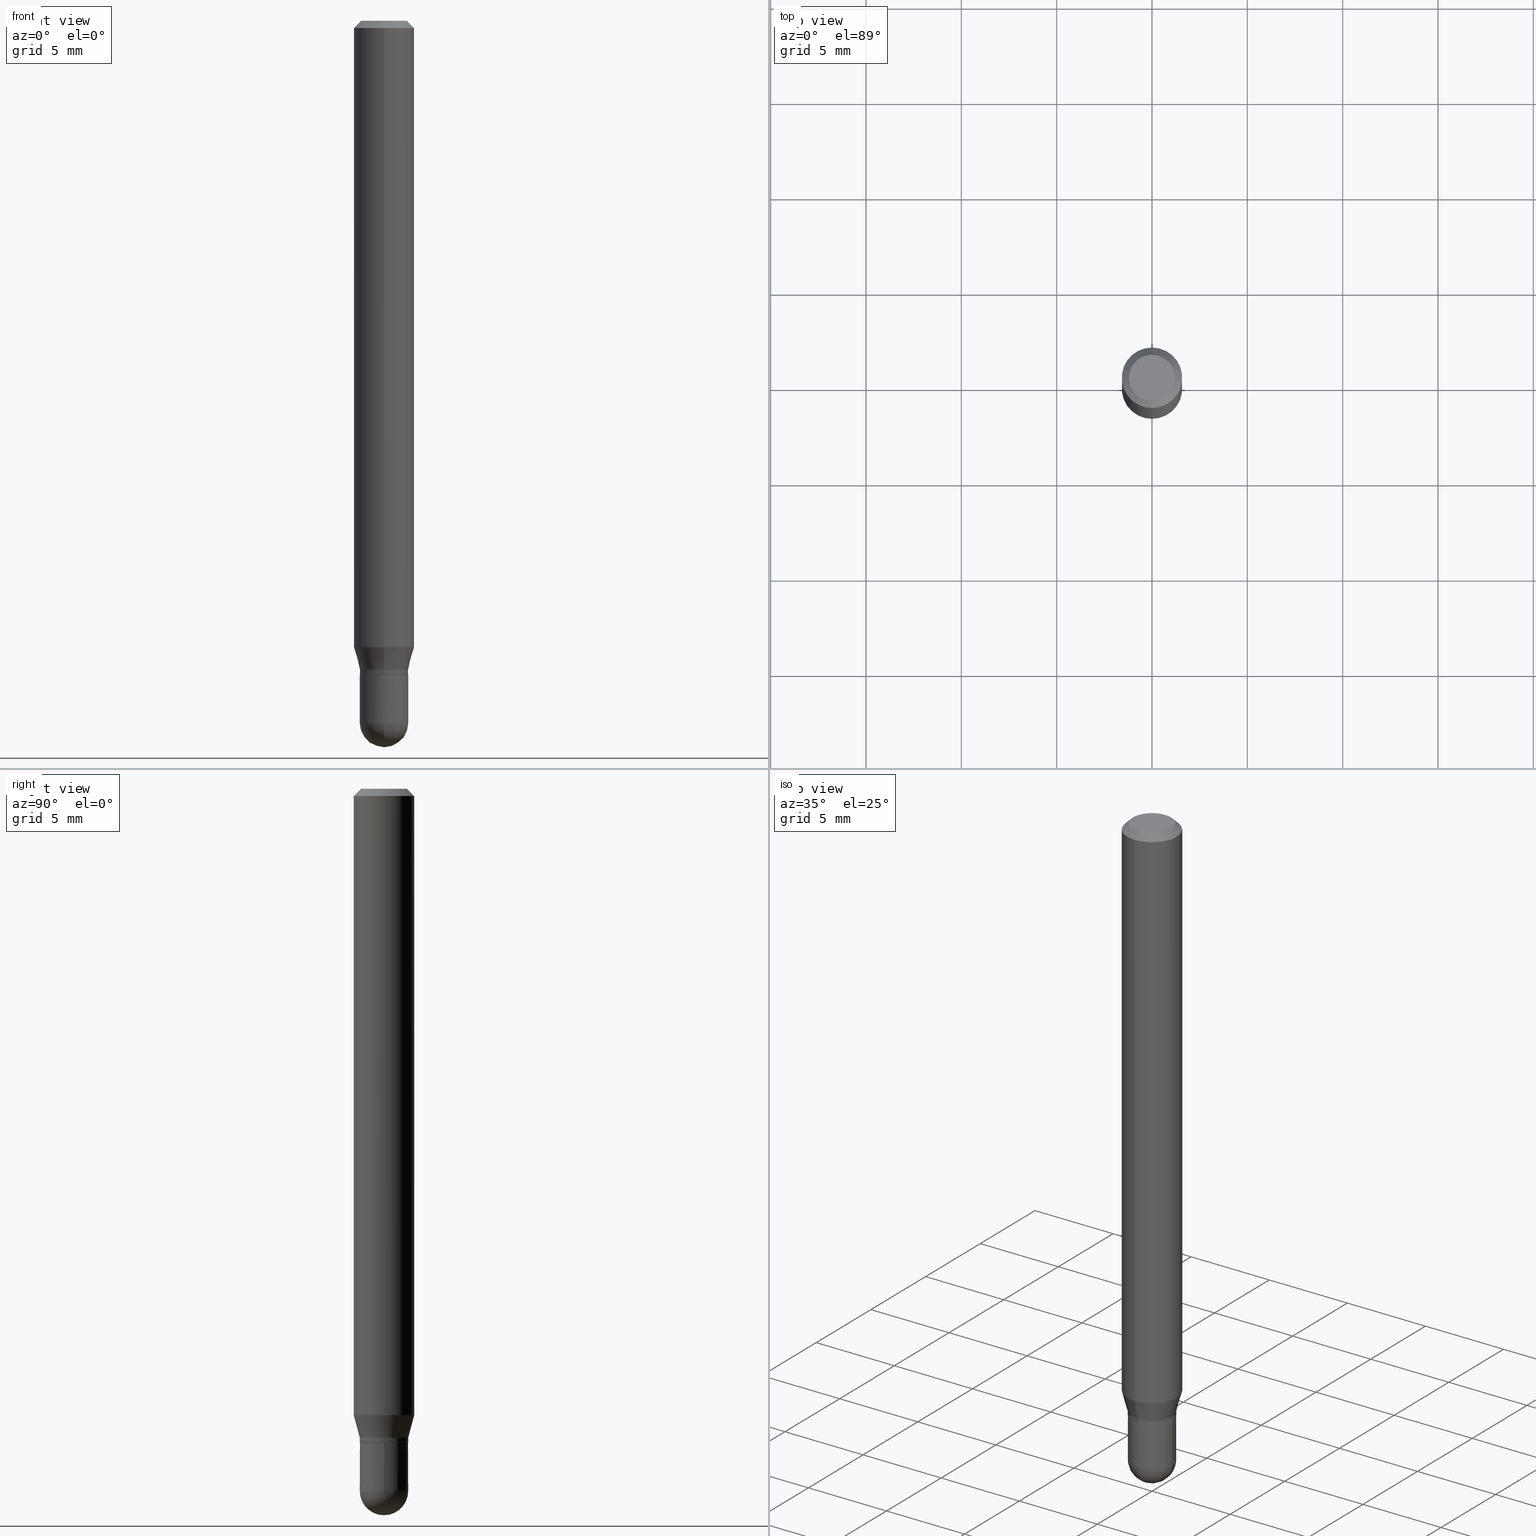
[diagram: canonical four-view strip — front | top / right | iso, engineering-drawing reading convention]
A machine part, canonical four-view strip (front | top / right | iso — engineering-drawing reading convention). The complete STEP part file that produces these views, byte-faithful:
ISO-10303-21;
HEADER;
FILE_DESCRIPTION (( 'STEP AP203' ),
    '1' );
FILE_NAME ('02533.STEP',
    '2024-03-07T20:17:11',
    ( '' ),
    ( '' ),
    'SwSTEP 2.0',
    'SolidWorks 2023',
    '' );
FILE_SCHEMA (( 'CONFIG_CONTROL_DESIGN' ));
ENDSEC;

DATA;
#1 = DIRECTION ( 'NONE',  ( -2.445341614175428020E-29, 3.491663485040367379E-15, 1.000000000000000000 ) ) ;
#2 = PERSON_AND_ORGANIZATION ( #133, #122 ) ;
#3 = EDGE_CURVE ( 'NONE', #261, #339, #460, .T. ) ;
#4 = AXIS2_PLACEMENT_3D ( 'NONE', #458, #273, #65 ) ;
#5 = VECTOR ( 'NONE', #228, 39.37007874015748143 ) ;
#6 = ADVANCED_FACE ( 'NONE', ( #444 ), #319, .T. ) ;
#7 = DIRECTION ( 'NONE',  ( 1.000000000000000000, -6.982962677686274599E-15, 0.000000000000000000 ) ) ;
#8 = VERTEX_POINT ( 'NONE', #455 ) ;
#9 = DIRECTION ( 'NONE',  ( 6.982962677686265922E-15, 1.000000000000000000, -3.491663485040367379E-15 ) ) ;
#10 = CARTESIAN_POINT ( 'NONE',  ( 0.000000000000000000, 0.000000000000000000, 0.000000000000000000 ) ) ;
#11 = CARTESIAN_POINT ( 'NONE',  ( 3.301382888349935078E-29, -4.713499807438246596E-15, -1.350000000000000089 ) ) ;
#12 = EDGE_LOOP ( 'NONE', ( #424, #18, #145, #420 ) ) ;
#13 = PERSON_AND_ORGANIZATION ( #133, #122 ) ;
#14 = PRODUCT ( '02533', '02533', '', ( #110 ) ) ;
#15 = ORIENTED_EDGE ( 'NONE', *, *, #183, .T. ) ;
#16 = DIRECTION ( 'NONE',  ( 1.000000000000000000, -6.982962677686265922E-15, 4.883557194083111780E-29 ) ) ;
#17 = DIRECTION ( 'NONE',  ( -2.445341614175428300E-29, 3.491663485040367379E-15, 1.000000000000000000 ) ) ;
#18 = ORIENTED_EDGE ( 'NONE', *, *, #226, .T. ) ;
#19 = VECTOR ( 'NONE', #315, 39.37007874015748143 ) ;
#20 = ORIENTED_EDGE ( 'NONE', *, *, #40, .F. ) ;
#21 = DIRECTION ( 'NONE',  ( 1.000000000000000000, -6.982962677686275388E-15, 0.000000000000000000 ) ) ;
#22 = ORIENTED_EDGE ( 'NONE', *, *, #472, .T. ) ;
#23 = LOCAL_TIME ( 15, 17, 11.00000000000000000, #170 ) ;
#24 = FACE_OUTER_BOUND ( 'NONE', #510, .T. ) ;
#25 = DIRECTION ( 'NONE',  ( -2.445341614175428300E-29, 3.491663485040367379E-15, 1.000000000000000000 ) ) ;
#26 = PLANE ( 'NONE',  #509 ) ;
#27 = CARTESIAN_POINT ( 'NONE',  ( 3.840629472727447874E-16, 0.04749999999999999362, -4.939923113072090255E-16 ) ) ;
#28 = LINE ( 'NONE', #59, #52 ) ;
#29 = CLOSED_SHELL ( 'NONE', ( #143, #42, #340, #136, #349 ) ) ;
#30 = CIRCLE ( 'NONE', #335, 0.06250000000000000000 ) ;
#31 = CC_DESIGN_DATE_AND_TIME_ASSIGNMENT ( #141, #130, ( #272 ) ) ;
#32 = CARTESIAN_POINT ( 'NONE',  ( 3.299988508329741342E-29, -4.711999873061976296E-15, -1.349500000000000144 ) ) ;
#33 = DIRECTION ( 'NONE',  ( -1.000000000000000000, 6.982962677686265922E-15, -4.876176775795935793E-29 ) ) ;
#34 = EDGE_CURVE ( 'NONE', #268, #97, #450, .T. ) ;
#35 = DIRECTION ( 'NONE',  ( 0.000000000000000000, 0.000000000000000000, 1.000000000000000000 ) ) ;
#36 = ORIENTED_EDGE ( 'NONE', *, *, #56, .T. ) ;
#37 = CIRCLE ( 'NONE', #169, 0.05000000000000014849 ) ;
#38 = EDGE_CURVE ( 'NONE', #454, #306, #309, .T. ) ;
#39 = DATE_AND_TIME ( #403, #23 ) ;
#40 = EDGE_CURVE ( 'NONE', #463, #311, #496, .T. ) ;
#41 = COORDINATED_UNIVERSAL_TIME_OFFSET ( 5, 0, .BEHIND. ) ;
#42 = ADVANCED_FACE ( 'NONE', ( #114 ), #291, .T. ) ;
#43 = AXIS2_PLACEMENT_3D ( 'NONE', #237, #17, #456 ) ;
#44 = AXIS2_PLACEMENT_3D ( 'NONE', #32, #361, #77 ) ;
#45 = VERTEX_POINT ( 'NONE', #162 ) ;
#46 = ADVANCED_FACE ( 'NONE', ( #285 ), #326, .T. ) ;
#47 = DIRECTION ( 'NONE',  ( -6.982962677686265922E-15, -1.000000000000000000, 5.518884835685379881E-15 ) ) ;
#48 = CARTESIAN_POINT ( 'NONE',  ( 0.05000000000000000278, -5.062647941322559931E-15, -1.350000000000000089 ) ) ;
#49 = ORIENTED_EDGE ( 'NONE', *, *, #356, .F. ) ;
#50 = CARTESIAN_POINT ( 'NONE',  ( 3.162681023670509800E-29, -4.515940750840297433E-15, -1.293349364905389320 ) ) ;
#51 = APPROVAL_ROLE ( '' ) ;
#52 = VECTOR ( 'NONE', #418, 39.37007874015748143 ) ;
#53 = CARTESIAN_POINT ( 'NONE',  ( 3.316907271900976096E-16, 0.04749999999999999362, -3.299231634233132902E-16 ) ) ;
#54 = ORIENTED_EDGE ( 'NONE', *, *, #325, .F. ) ;
#55 = VERTEX_POINT ( 'NONE', #353 ) ;
#56 = EDGE_CURVE ( 'NONE', #486, #367, #70, .T. ) ;
#57 = DIRECTION ( 'NONE',  ( -2.445468806185136597E-29, 3.491481338843145583E-15, 1.000000000000000000 ) ) ;
#58 = ORIENTED_EDGE ( 'NONE', *, *, #38, .F. ) ;
#59 = CARTESIAN_POINT ( 'NONE',  ( -3.456566525454371962E-16, -0.04950000000000471384, -1.349999999999999867 ) ) ;
#60 = VERTEX_POINT ( 'NONE', #329 ) ;
#61 = ORIENTED_EDGE ( 'NONE', *, *, #415, .F. ) ;
#62 = EDGE_LOOP ( 'NONE', ( #281, #457 ) ) ;
#63 = APPLICATION_CONTEXT ( 'configuration controlled 3d designs of mechanical parts and assemblies' ) ;
#64 = AXIS2_PLACEMENT_3D ( 'NONE', #274, #16, #66 ) ;
#65 = DIRECTION ( 'NONE',  ( 1.000000000000000000, -6.982962677686275388E-15, 0.000000000000000000 ) ) ;
#66 = DIRECTION ( 'NONE',  ( -6.982962677686265922E-15, -1.000000000000000000, 5.463695987328509871E-15 ) ) ;
#67 = CARTESIAN_POINT ( 'NONE',  ( -4.364351673553598192E-16, -0.06250000000000448253, -1.293349364905389098 ) ) ;
#68 = DIRECTION ( 'NONE',  ( -2.445341614175428300E-29, 3.491663485040367379E-15, 1.000000000000000000 ) ) ;
#69 = CC_DESIGN_PERSON_AND_ORGANIZATION_ASSIGNMENT ( #112, #166, ( #465 ) ) ;
#70 = CIRCLE ( 'NONE', #373, 0.04999999999999992645 ) ;
#71 = LINE ( 'NONE', #198, #85 ) ;
#72 = CARTESIAN_POINT ( 'NONE',  ( 3.661789462108859761E-29, -5.246406859258323786E-15, -1.500000000000000444 ) ) ;
#73 = CIRCLE ( 'NONE', #413, 0.04999999999999992645 ) ;
#74 = DIRECTION ( 'NONE',  ( -6.982962677686267499E-15, -1.000000000000000000, 5.463695987328534326E-15 ) ) ;
#75 = DIRECTION ( 'NONE',  ( -6.982962677686267499E-15, -1.000000000000000000, 5.463695987328534326E-15 ) ) ;
#76 = DIRECTION ( 'NONE',  ( -2.445341614175428300E-29, 3.491663485040367379E-15, 1.000000000000000000 ) ) ;
#77 = DIRECTION ( 'NONE',  ( -6.982962677686267499E-15, -1.000000000000000000, 5.463695987328534326E-15 ) ) ;
#78 = DIRECTION ( 'NONE',  ( 2.445341614175428300E-29, -3.491663485040367379E-15, -1.000000000000000000 ) ) ;
#79 = DIRECTION ( 'NONE',  ( 6.982962677686265922E-15, 1.000000000000000000, -3.483106191921935554E-15 ) ) ;
#80 = CIRCLE ( 'NONE', #251, 0.04999999999999999584 ) ;
#81 = CARTESIAN_POINT ( 'NONE',  ( 3.996802888650882640E-16, 0.04999999999999524963, -1.340000000000000746 ) ) ;
#82 = EDGE_CURVE ( 'NONE', #55, #60, #290, .T. ) ;
#83 = PRODUCT_RELATED_PRODUCT_CATEGORY ( 'detail', '', ( #14 ) ) ;
#84 = DATE_AND_TIME ( #299, #231 ) ;
#85 = VECTOR ( 'NONE', #244, 39.37007874015748143 ) ;
#86 = CC_DESIGN_APPROVAL ( #296, ( #209 ) ) ;
#87 = CARTESIAN_POINT ( 'NONE',  ( -3.773273898774340269E-16, -0.04749999999999999362, -1.622842802283741865E-16 ) ) ;
#88 = EDGE_CURVE ( 'NONE', #8, #224, #142, .T. ) ;
#89 = ORIENTED_EDGE ( 'NONE', *, *, #154, .F. ) ;
#90 = PLANE ( 'NONE',  #263 ) ;
#91 = EDGE_LOOP ( 'NONE', ( #303, #345, #501, #313 ) ) ;
#92 = EDGE_LOOP ( 'NONE', ( #190, #479, #259, #93 ) ) ;
#93 = ORIENTED_EDGE ( 'NONE', *, *, #125, .F. ) ;
#94 = APPROVAL_STATUS ( 'not_yet_approved' ) ;
#95 = AXIS2_PLACEMENT_3D ( 'NONE', #371, #508, #75 ) ;
#96 = ORIENTED_EDGE ( 'NONE', *, *, #437, .T. ) ;
#97 = VERTEX_POINT ( 'NONE', #260 ) ;
#98 = DIRECTION ( 'NONE',  ( -2.445341614175428300E-29, 3.491663485040367379E-15, 1.000000000000000000 ) ) ;
#99 = LOCAL_TIME ( 15, 17, 11.00000000000000000, #266 ) ;
#100 = CARTESIAN_POINT ( 'NONE',  ( 3.668012421263222920E-31, -5.237495227560666341E-17, -0.01500000000000032904 ) ) ;
#101 = LINE ( 'NONE', #105, #408 ) ;
#102 =( CONVERSION_BASED_UNIT ( 'INCH', #230 ) LENGTH_UNIT ( ) NAMED_UNIT ( #406 ) );
#103 = DIRECTION ( 'NONE',  ( -6.982962677686265922E-15, -1.000000000000000000, 3.483106191921935554E-15 ) ) ;
#104 = DIRECTION ( 'NONE',  ( -6.982962677686265922E-15, -1.000000000000000000, 4.370956789862821150E-15 ) ) ;
#105 = CARTESIAN_POINT ( 'NONE',  ( -3.491481338842800555E-16, -0.05000000000000460326, -1.340000000000000080 ) ) ;
#106 = CARTESIAN_POINT ( 'NONE',  ( 0.000000000000000000, 0.000000000000000000, 0.000000000000000000 ) ) ;
#107 = AXIS2_PLACEMENT_3D ( 'NONE', #462, #419, #149 ) ;
#108 = CALENDAR_DATE ( 2024, 7, 3 ) ;
#109 = FACE_OUTER_BOUND ( 'NONE', #429, .T. ) ;
#110 = MECHANICAL_CONTEXT ( 'NONE', #374, 'mechanical' ) ;
#111 = DIRECTION ( 'NONE',  ( -2.445341614175428300E-29, 3.491663485040367379E-15, 1.000000000000000000 ) ) ;
#112 = PERSON_AND_ORGANIZATION ( #133, #122 ) ;
#113 = CARTESIAN_POINT ( 'NONE',  ( 3.668012421263222920E-31, -5.237495227560666341E-17, -0.01500000000000032904 ) ) ;
#114 = FACE_OUTER_BOUND ( 'NONE', #382, .T. ) ;
#115 = AXIS2_PLACEMENT_3D ( 'NONE', #11, #336, #300 ) ;
#116 = EDGE_CURVE ( 'NONE', #270, #8, #210, .T. ) ;
#117 = LOCAL_TIME ( 15, 17, 11.00000000000000000, #383 ) ;
#118 = EDGE_CURVE ( 'NONE', #270, #454, #37, .T. ) ;
#119 = EDGE_CURVE ( 'NONE', #224, #454, #477, .T. ) ;
#120 = DIRECTION ( 'NONE',  ( 1.000000000000000000, 0.000000000000000000, 0.000000000000000000 ) ) ;
#121 = AXIS2_PLACEMENT_3D ( 'NONE', #467, #25, #139 ) ;
#122 = ORGANIZATION ( 'UNSPECIFIED', 'UNSPECIFIED', '' ) ;
#123 = DIRECTION ( 'NONE',  ( -2.445468806185136597E-29, 3.491481338843145583E-15, 1.000000000000000000 ) ) ;
#124 = LINE ( 'NONE', #344, #464 ) ;
#125 = EDGE_CURVE ( 'NONE', #463, #55, #28, .T. ) ;
#126 = APPLICATION_PROTOCOL_DEFINITION ( 'international standard', 'config_control_design', 1994, #63 ) ;
#127 = DATE_TIME_ROLE ( 'classification_date' ) ;
#128 = ORIENTED_EDGE ( 'NONE', *, *, #437, .F. ) ;
#129 = EDGE_CURVE ( 'NONE', #311, #60, #490, .T. ) ;
#130 = DATE_TIME_ROLE ( 'creation_date' ) ;
#131 = ORIENTED_EDGE ( 'NONE', *, *, #34, .F. ) ;
#132 = ORIENTED_EDGE ( 'NONE', *, *, #163, .F. ) ;
#133 = PERSON ( 'UNSPECIFIED', 'UNSPECIFIED', 'UNSPECIFIED', ('UNSPECIFIED'), ('UNSPECIFIED'), ('UNSPECIFIED') ) ;
#134 = CARTESIAN_POINT ( 'NONE',  ( 3.541653937522551347E-29, -5.068771175318297793E-15, -1.450000000000000178 ) ) ;
#135 = APPROVAL_DATE_TIME ( #264, #175 ) ;
#136 = ADVANCED_FACE ( 'NONE', ( #109 ), #193, .T. ) ;
#137 = ORIENTED_EDGE ( 'NONE', *, *, #88, .T. ) ;
#138 = FACE_OUTER_BOUND ( 'NONE', #12, .T. ) ;
#139 = DIRECTION ( 'NONE',  ( -6.982962677686267499E-15, -1.000000000000000000, 5.463695987328534326E-15 ) ) ;
#140 = ORIENTED_EDGE ( 'NONE', *, *, #415, .T. ) ;
#141 = DATE_AND_TIME ( #186, #395 ) ;
#142 = CIRCLE ( 'NONE', #348, 0.04999999999999999584 ) ;
#143 = ADVANCED_FACE ( 'NONE', ( #233 ), #200, .T. ) ;
#144 = AXIS2_PLACEMENT_3D ( 'NONE', #431, #243, #205 ) ;
#145 = ORIENTED_EDGE ( 'NONE', *, *, #409, .T. ) ;
#146 = APPROVAL_PERSON_ORGANIZATION ( #302, #175, #488 ) ;
#147 = ORIENTED_EDGE ( 'NONE', *, *, #236, .T. ) ;
#148 = DIRECTION ( 'NONE',  ( -6.982962677686267499E-15, -1.000000000000000000, 3.491663485040367379E-15 ) ) ;
#149 = DIRECTION ( 'NONE',  ( -6.982962677686266711E-15, -1.000000000000000000, 3.491663485040367379E-15 ) ) ;
#150 = MANIFOLD_SOLID_BREP ( 'Body-Move/Copy2[1]', #29 ) ;
#151 = CYLINDRICAL_SURFACE ( 'NONE', #257, 0.04999999999999999584 ) ;
#152 = ORIENTED_EDGE ( 'NONE', *, *, #88, .F. ) ;
#153 = DIRECTION ( 'NONE',  ( -2.445468806185136597E-29, 3.491481338843145583E-15, 1.000000000000000000 ) ) ;
#154 = EDGE_CURVE ( 'NONE', #486, #45, #218, .T. ) ;
#155 = PLANE ( 'NONE',  #473 ) ;
#156 = FACE_OUTER_BOUND ( 'NONE', #449, .T. ) ;
#157 = CARTESIAN_POINT ( 'NONE',  ( 3.541653937522551347E-29, -5.068771175318297793E-15, -1.450000000000000178 ) ) ;
#158 = DIRECTION ( 'NONE',  ( -6.982962677686265922E-15, -1.000000000000000000, 0.000000000000000000 ) ) ;
#159 = AXIS2_PLACEMENT_3D ( 'NONE', #355, #502, #507 ) ;
#160 = CARTESIAN_POINT ( 'NONE',  ( -3.491481338842800555E-16, -0.05000000000000460326, -1.340000000000000080 ) ) ;
#161 = CARTESIAN_POINT ( 'NONE',  ( -0.04999999999999999584, 3.552713678800500634E-16, -2.459467545127452961E-30 ) ) ;
#162 = CARTESIAN_POINT ( 'NONE',  ( 4.440892098500943678E-16, 0.06249999999999551054, -1.293349364905389765 ) ) ;
#163 = EDGE_CURVE ( 'NONE', #448, #267, #201, .T. ) ;
#164 = LINE ( 'NONE', #423, #5 ) ;
#165 = DIRECTION ( 'NONE',  ( -2.445468806185136877E-29, 3.491481338843145188E-15, 1.000000000000000000 ) ) ;
#166 = PERSON_AND_ORGANIZATION_ROLE ( 'design_supplier' ) ;
#167 = DIRECTION ( 'NONE',  ( 2.438088387897960049E-29, -3.491481338843145188E-15, -1.000000000000000000 ) ) ;
#168 = CC_DESIGN_PERSON_AND_ORGANIZATION_ASSIGNMENT ( #2, #478, ( #14 ) ) ;
#169 = AXIS2_PLACEMENT_3D ( 'NONE', #134, #262, #158 ) ;
#170 = COORDINATED_UNIVERSAL_TIME_OFFSET ( 5, 0, .BEHIND. ) ;
#171 = APPROVAL_DATE_TIME ( #39, #296 ) ;
#172 = PERSON_AND_ORGANIZATION_ROLE ( 'classification_officer' ) ;
#173 = CARTESIAN_POINT ( 'NONE',  ( 3.541653937522551347E-29, -5.068771175318297793E-15, -1.450000000000000178 ) ) ;
#174 = LINE ( 'NONE', #213, #376 ) ;
#175 = APPROVAL ( #94, 'UNSPECIFIED' ) ;
#176 = DIRECTION ( 'NONE',  ( -2.445468806185136877E-29, 3.491481338843145188E-15, 1.000000000000000000 ) ) ;
#177 = UNCERTAINTY_MEASURE_WITH_UNIT (LENGTH_MEASURE( 1.000000000000000082E-05 ), #102, 'distance_accuracy_value', 'NONE');
#178 = FACE_OUTER_BOUND ( 'NONE', #221, .T. ) ;
#179 = ADVANCED_FACE ( 'NONE', ( #138 ), #385, .T. ) ;
#180 = EDGE_LOOP ( 'NONE', ( #137, #483, #316, #192, #414 ) ) ;
#181 = AXIS2_PLACEMENT_3D ( 'NONE', #113, #242, #79 ) ;
#182 = DIRECTION ( 'NONE',  ( -2.445341614175428300E-29, 3.491663485040367379E-15, 1.000000000000000000 ) ) ;
#183 = EDGE_CURVE ( 'NONE', #448, #268, #269, .T. ) ;
#184 = EDGE_LOOP ( 'NONE', ( #20, #61 ) ) ;
#185 = EDGE_LOOP ( 'NONE', ( #132, #15, #447, #49 ) ) ;
#186 = CALENDAR_DATE ( 2024, 7, 3 ) ;
#187 = EDGE_CURVE ( 'NONE', #306, #339, #124, .T. ) ;
#188 = CARTESIAN_POINT ( 'NONE',  ( 0.000000000000000000, 0.000000000000000000, 0.000000000000000000 ) ) ;
#189 = ORIENTED_EDGE ( 'NONE', *, *, #236, .F. ) ;
#190 = ORIENTED_EDGE ( 'NONE', *, *, #40, .T. ) ;
#191 = APPROVAL_PERSON_ORGANIZATION ( #305, #341, #51 ) ;
#192 = ORIENTED_EDGE ( 'NONE', *, *, #187, .F. ) ;
#193 = SPHERICAL_SURFACE ( 'NONE', #64, 0.05000000000000014849 ) ;
#194 = ORIENTED_EDGE ( 'NONE', *, *, #116, .F. ) ;
#195 =( NAMED_UNIT ( * ) PLANE_ANGLE_UNIT ( ) SI_UNIT ( $, .RADIAN. ) );
#196 = CARTESIAN_POINT ( 'NONE',  ( 8.024102298455857291E-45, -1.145748505375774166E-30, -3.281382957677916183E-16 ) ) ;
#197 = DATE_AND_TIME ( #108, #99 ) ;
#198 = CARTESIAN_POINT ( 'NONE',  ( 3.552713678800495210E-16, 0.04999999999999992645, -1.745831742520181027E-16 ) ) ;
#199 = DIRECTION ( 'NONE',  ( 1.000000000000000000, -6.982962677686265922E-15, 4.883557194083111780E-29 ) ) ;
#200 = CYLINDRICAL_SURFACE ( 'NONE', #366, 0.04999999999999999584 ) ;
#201 = CIRCLE ( 'NONE', #388, 0.04749999999999999362 ) ;
#202 = LINE ( 'NONE', #161, #227 ) ;
#203 = DESIGN_CONTEXT ( 'detailed design', #63, 'design' ) ;
#204 = CARTESIAN_POINT ( 'NONE',  ( 3.668012421263222920E-31, -5.237495227560666341E-17, -0.01500000000000032904 ) ) ;
#205 = DIRECTION ( 'NONE',  ( -6.982962677686265922E-15, -1.000000000000000000, 3.491663485040367379E-15 ) ) ;
#206 = CARTESIAN_POINT ( 'NONE',  ( -4.364351673553912750E-16, -0.06250000000000005551, -0.01500000000000011047 ) ) ;
#207 = CONICAL_SURFACE ( 'NONE', #43, 0.04950000000000000233, 0.7853981633974739252 ) ;
#208 = DIRECTION ( 'NONE',  ( -2.445468806185136597E-29, 3.491481338843145583E-15, 1.000000000000000000 ) ) ;
#209 = SECURITY_CLASSIFICATION ( '', '', #393 ) ;
#210 = CIRCLE ( 'NONE', #287, 0.05000000000000014849 ) ;
#211 = CONICAL_SURFACE ( 'NONE', #95, 0.04999999999999992645, 0.2617993877991504625 ) ;
#212 = EDGE_CURVE ( 'NONE', #339, #261, #241, .T. ) ;
#213 = CARTESIAN_POINT ( 'NONE',  ( 4.440892098500625669E-16, 0.06250000000000000000, -2.182289678150229612E-16 ) ) ;
#214 = EDGE_CURVE ( 'NONE', #377, #268, #258, .T. ) ;
#215 = CARTESIAN_POINT ( 'NONE',  ( -0.04999999999999999584, -4.532802506500353644E-15, -1.450000000000000178 ) ) ;
#216 = ORIENTED_EDGE ( 'NONE', *, *, #214, .T. ) ;
#217 = CARTESIAN_POINT ( 'NONE',  ( 3.301382888349935078E-29, -4.713499807438246596E-15, -1.350000000000000089 ) ) ;
#218 = LINE ( 'NONE', #351, #470 ) ;
#219 = ORIENTED_EDGE ( 'NONE', *, *, #125, .T. ) ;
#220 = DIRECTION ( 'NONE',  ( 1.000000000000000000, -6.982962677686265922E-15, 4.876176775795936353E-29 ) ) ;
#221 = EDGE_LOOP ( 'NONE', ( #147, #400 ) ) ;
#222 = PRODUCT_DEFINITION_SHAPE ( 'NONE', 'NONE',  #272 ) ;
#223 = ORIENTED_EDGE ( 'NONE', *, *, #82, .T. ) ;
#224 = VERTEX_POINT ( 'NONE', #215 ) ;
#225 = ORIENTED_EDGE ( 'NONE', *, *, #442, .F. ) ;
#226 = EDGE_CURVE ( 'NONE', #60, #55, #441, .T. ) ;
#227 = VECTOR ( 'NONE', #165, 39.37007874015748143 ) ;
#228 = DIRECTION ( 'NONE',  ( 4.937700262164548042E-15, 0.7071067811865451302, -0.7071067811865499042 ) ) ;
#229 = CARTESIAN_POINT ( 'NONE',  ( 3.276757762995075475E-29, -4.678829069954094324E-15, -1.340000000000000524 ) ) ;
#230 = LENGTH_MEASURE_WITH_UNIT ( LENGTH_MEASURE( 0.02539999999999999897 ), #328 );
#231 = LOCAL_TIME ( 15, 17, 11.00000000000000000, #41 ) ;
#232 = ORIENTED_EDGE ( 'NONE', *, *, #294, .F. ) ;
#233 = FACE_OUTER_BOUND ( 'NONE', #180, .T. ) ;
#234 = CARTESIAN_POINT ( 'NONE',  ( 3.545929768968448850E-29, -5.062647941322561509E-15, -1.450000000000000178 ) ) ;
#235 = ORIENTED_EDGE ( 'NONE', *, *, #118, .T. ) ;
#236 = EDGE_CURVE ( 'NONE', #267, #448, #330, .T. ) ;
#237 = CARTESIAN_POINT ( 'NONE',  ( 3.301211179136828164E-29, -4.713745704804496317E-15, -1.350000000000000089 ) ) ;
#238 = DIRECTION ( 'NONE',  ( -2.445341614175428300E-29, 3.491663485040367379E-15, 1.000000000000000000 ) ) ;
#239 = ADVANCED_FACE ( 'NONE', ( #156 ), #207, .T. ) ;
#240 = AXIS2_PLACEMENT_3D ( 'NONE', #100, #453, #103 ) ;
#241 = CIRCLE ( 'NONE', #115, 0.05000000000000000278 ) ;
#242 = DIRECTION ( 'NONE',  ( 2.445341614175428300E-29, -3.491663485040367379E-15, -1.000000000000000000 ) ) ;
#243 = DIRECTION ( 'NONE',  ( -2.445341614175428300E-29, 3.491663485040367379E-15, 1.000000000000000000 ) ) ;
#244 = DIRECTION ( 'NONE',  ( -2.445341614175428020E-29, 3.491663485040367379E-15, 1.000000000000000000 ) ) ;
#245 = CARTESIAN_POINT ( 'NONE',  ( 3.545929768968448850E-29, -5.062647941322561509E-15, -1.450000000000000178 ) ) ;
#246 = EDGE_CURVE ( 'NONE', #367, #377, #101, .T. ) ;
#247 = DIRECTION ( 'NONE',  ( -6.982962677686265922E-15, -1.000000000000000000, 5.518884835685379881E-15 ) ) ;
#248 = DIRECTION ( 'NONE',  ( -6.982962677686267499E-15, -1.000000000000000000, 5.463695987328534326E-15 ) ) ;
#249 = AXIS2_PLACEMENT_3D ( 'NONE', #217, #153, #7 ) ;
#250 = EDGE_CURVE ( 'NONE', #60, #486, #71, .T. ) ;
#251 = AXIS2_PLACEMENT_3D ( 'NONE', #234, #208, #511 ) ;
#252 = FACE_OUTER_BOUND ( 'NONE', #417, .T. ) ;
#253 = ORIENTED_EDGE ( 'NONE', *, *, #187, .T. ) ;
#254 = EDGE_CURVE ( 'NONE', #367, #486, #73, .T. ) ;
#255 = CC_DESIGN_PERSON_AND_ORGANIZATION_ASSIGNMENT ( #364, #172, ( #209 ) ) ;
#256 = DIRECTION ( 'NONE',  ( -2.445341614175428300E-29, 3.491663485040367379E-15, 1.000000000000000000 ) ) ;
#257 = AXIS2_PLACEMENT_3D ( 'NONE', #354, #317, #390 ) ;
#258 = LINE ( 'NONE', #410, #275 ) ;
#259 = ORIENTED_EDGE ( 'NONE', *, *, #82, .F. ) ;
#260 = CARTESIAN_POINT ( 'NONE',  ( 4.440892098500943678E-16, 0.06249999999999995143, -0.01500000000000054588 ) ) ;
#261 = VERTEX_POINT ( 'NONE', #397 ) ;
#262 = DIRECTION ( 'NONE',  ( -1.000000000000000000, 6.982962677686265922E-15, -4.883557194083112340E-29 ) ) ;
#263 = AXIS2_PLACEMENT_3D ( 'NONE', #53, #337, #9 ) ;
#264 = DATE_AND_TIME ( #492, #117 ) ;
#265 =( GEOMETRIC_REPRESENTATION_CONTEXT ( 3 ) GLOBAL_UNCERTAINTY_ASSIGNED_CONTEXT ( ( #177 ) ) GLOBAL_UNIT_ASSIGNED_CONTEXT ( ( #102, #195, #322 ) ) REPRESENTATION_CONTEXT ( 'NONE', 'WORKASPACE' ) );
#266 = COORDINATED_UNIVERSAL_TIME_OFFSET ( 5, 0, .BEHIND. ) ;
#267 = VERTEX_POINT ( 'NONE', #27 ) ;
#268 = VERTEX_POINT ( 'NONE', #206 ) ;
#269 = LINE ( 'NONE', #346, #19 ) ;
#270 = VERTEX_POINT ( 'NONE', #72 ) ;
#271 = ORIENTED_EDGE ( 'NONE', *, *, #250, .T. ) ;
#272 = PRODUCT_DEFINITION ( 'UNKNOWN', '', #465, #203 ) ;
#273 = DIRECTION ( 'NONE',  ( -2.445468806185136597E-29, 3.491481338843145583E-15, 1.000000000000000000 ) ) ;
#274 = CARTESIAN_POINT ( 'NONE',  ( 3.541653937522551347E-29, -5.068771175318297793E-15, -1.450000000000000178 ) ) ;
#275 = VECTOR ( 'NONE', #1, 39.37007874015748143 ) ;
#276 = DIRECTION ( 'NONE',  ( -2.445341614175428300E-29, 3.491663485040367379E-15, 1.000000000000000000 ) ) ;
#277 = DIRECTION ( 'NONE',  ( -2.445341614175428300E-29, 3.491663485040367379E-15, 1.000000000000000000 ) ) ;
#278 = CC_DESIGN_SECURITY_CLASSIFICATION ( #209, ( #465 ) ) ;
#279 = CARTESIAN_POINT ( 'NONE',  ( 3.301211179136828164E-29, -4.713745704804496317E-15, -1.350000000000000089 ) ) ;
#280 = CARTESIAN_POINT ( 'NONE',  ( 3.517186542012825435E-16, 0.04949999999999529082, -1.350000000000000311 ) ) ;
#281 = ORIENTED_EDGE ( 'NONE', *, *, #212, .T. ) ;
#282 = DIRECTION ( 'NONE',  ( -2.445341614175428300E-29, 3.491663485040367379E-15, 1.000000000000000000 ) ) ;
#283 = SHAPE_DEFINITION_REPRESENTATION ( #222, #493 ) ;
#284 = ADVANCED_FACE ( 'NONE', ( #332 ), #298, .T. ) ;
#285 = FACE_OUTER_BOUND ( 'NONE', #387, .T. ) ;
#286 = CC_DESIGN_DATE_AND_TIME_ASSIGNMENT ( #84, #127, ( #209 ) ) ;
#287 = AXIS2_PLACEMENT_3D ( 'NONE', #173, #485, #476 ) ;
#288 = AXIS2_PLACEMENT_3D ( 'NONE', #50, #352, #104 ) ;
#289 = FACE_OUTER_BOUND ( 'NONE', #91, .T. ) ;
#290 = CIRCLE ( 'NONE', #44, 0.04999999999999992645 ) ;
#291 = SPHERICAL_SURFACE ( 'NONE', #432, 0.05000000000000014849 ) ;
#292 = ORIENTED_EDGE ( 'NONE', *, *, #183, .F. ) ;
#293 = FACE_OUTER_BOUND ( 'NONE', #185, .T. ) ;
#294 = EDGE_CURVE ( 'NONE', #224, #261, #202, .T. ) ;
#295 = DIRECTION ( 'NONE',  ( -6.982962677686265922E-15, -1.000000000000000000, 3.491663485040367379E-15 ) ) ;
#296 = APPROVAL ( #512, 'UNSPECIFIED' ) ;
#297 = CARTESIAN_POINT ( 'NONE',  ( 3.301211179136828164E-29, -4.713745704804496317E-15, -1.350000000000000089 ) ) ;
#298 = CONICAL_SURFACE ( 'NONE', #159, 0.04950000000000000233, 0.7853981633974739252 ) ;
#299 = CALENDAR_DATE ( 2024, 7, 3 ) ;
#300 = DIRECTION ( 'NONE',  ( 1.000000000000000000, -6.982962677686274599E-15, 0.000000000000000000 ) ) ;
#301 = AXIS2_PLACEMENT_3D ( 'NONE', #391, #57, #21 ) ;
#302 = PERSON_AND_ORGANIZATION ( #133, #122 ) ;
#303 = ORIENTED_EDGE ( 'NONE', *, *, #254, .T. ) ;
#304 = CARTESIAN_POINT ( 'NONE',  ( -3.456566525454371962E-16, -0.04950000000000471384, -1.349999999999999867 ) ) ;
#305 = PERSON_AND_ORGANIZATION ( #133, #122 ) ;
#306 = VERTEX_POINT ( 'NONE', #466 ) ;
#307 = ORIENTED_EDGE ( 'NONE', *, *, #118, .F. ) ;
#308 = ORIENTED_EDGE ( 'NONE', *, *, #214, .F. ) ;
#309 = CIRCLE ( 'NONE', #4, 0.04999999999999999584 ) ;
#310 = CARTESIAN_POINT ( 'NONE',  ( 0.000000000000000000, 0.000000000000000000, 0.000000000000000000 ) ) ;
#311 = VERTEX_POINT ( 'NONE', #469 ) ;
#312 = AXIS2_PLACEMENT_3D ( 'NONE', #297, #446, #47 ) ;
#313 = ORIENTED_EDGE ( 'NONE', *, *, #246, .F. ) ;
#314 = ORIENTED_EDGE ( 'NONE', *, *, #356, .T. ) ;
#315 = DIRECTION ( 'NONE',  ( -4.851104656540964275E-15, -0.7071067811865500152, -0.7071067811865450192 ) ) ;
#316 = ORIENTED_EDGE ( 'NONE', *, *, #212, .F. ) ;
#317 = DIRECTION ( 'NONE',  ( -2.445468806185136597E-29, 3.491481338843145583E-15, 1.000000000000000000 ) ) ;
#318 = ORIENTED_EDGE ( 'NONE', *, *, #325, .T. ) ;
#319 = CYLINDRICAL_SURFACE ( 'NONE', #392, 0.06250000000000000000 ) ;
#320 = DIRECTION ( 'NONE',  ( 1.839019923739601499E-15, 0.2588190451025251249, 0.9659258262890670910 ) ) ;
#321 = CYLINDRICAL_SURFACE ( 'NONE', #433, 0.04999999999999992645 ) ;
#322 =( NAMED_UNIT ( * ) SI_UNIT ( $, .STERADIAN. ) SOLID_ANGLE_UNIT ( ) );
#323 = EDGE_LOOP ( 'NONE', ( #292, #189, #314, #318 ) ) ;
#324 = VECTOR ( 'NONE', #396, 39.37007874015748143 ) ;
#325 = EDGE_CURVE ( 'NONE', #97, #268, #438, .T. ) ;
#326 = CYLINDRICAL_SURFACE ( 'NONE', #144, 0.06250000000000000000 ) ;
#327 = DIRECTION ( 'NONE',  ( -2.445468806185136597E-29, 3.491481338843145583E-15, 1.000000000000000000 ) ) ;
#328 =( LENGTH_UNIT ( ) NAMED_UNIT ( * ) SI_UNIT ( $, .METRE. ) );
#329 = CARTESIAN_POINT ( 'NONE',  ( 3.552713678800832448E-16, 0.04999999999999531902, -1.349500000000000366 ) ) ;
#330 = CIRCLE ( 'NONE', #107, 0.04749999999999999362 ) ;
#331 = ADVANCED_FACE ( 'NONE', ( #506 ), #347, .T. ) ;
#332 = FACE_OUTER_BOUND ( 'NONE', #92, .T. ) ;
#333 = CC_DESIGN_PERSON_AND_ORGANIZATION_ASSIGNMENT ( #13, #412, ( #272 ) ) ;
#334 = PERSON_AND_ORGANIZATION ( #133, #122 ) ;
#335 = AXIS2_PLACEMENT_3D ( 'NONE', #489, #256, #471 ) ;
#336 = DIRECTION ( 'NONE',  ( -2.445468806185136597E-29, 3.491481338843145583E-15, 1.000000000000000000 ) ) ;
#337 = DIRECTION ( 'NONE',  ( 2.445341614175428020E-29, -3.491663485040367379E-15, -1.000000000000000000 ) ) ;
#338 = VECTOR ( 'NONE', #461, 39.37007874015748143 ) ;
#339 = VERTEX_POINT ( 'NONE', #48 ) ;
#340 = ADVANCED_FACE ( 'NONE', ( #422 ), #26, .F. ) ;
#341 = APPROVAL ( #445, 'UNSPECIFIED' ) ;
#342 = DIRECTION ( 'NONE',  ( -2.445341614175428020E-29, 3.491663485040367379E-15, 1.000000000000000000 ) ) ;
#343 = ORIENTED_EDGE ( 'NONE', *, *, #399, .F. ) ;
#344 = CARTESIAN_POINT ( 'NONE',  ( 0.04999999999999999584, -3.491481338843132862E-16, 2.438088387897967896E-30 ) ) ;
#345 = ORIENTED_EDGE ( 'NONE', *, *, #154, .T. ) ;
#346 = CARTESIAN_POINT ( 'NONE',  ( -4.287811248607203282E-16, -0.06250000000000005551, -0.01500000000000011047 ) ) ;
#347 = CONICAL_SURFACE ( 'NONE', #181, 0.06250000000000000000, 0.7853981633974483900 ) ;
#348 = AXIS2_PLACEMENT_3D ( 'NONE', #245, #123, #480 ) ;
#349 = ADVANCED_FACE ( 'NONE', ( #504 ), #151, .T. ) ;
#350 = ORIENTED_EDGE ( 'NONE', *, *, #119, .T. ) ;
#351 = CARTESIAN_POINT ( 'NONE',  ( 3.552713678800822587E-16, 0.04999999999999524963, -1.340000000000000746 ) ) ;
#352 = DIRECTION ( 'NONE',  ( -2.445341614175428300E-29, 3.491663485040367379E-15, 1.000000000000000000 ) ) ;
#353 = CARTESIAN_POINT ( 'NONE',  ( -3.491481338842790694E-16, -0.05000000000000454081, -1.349499999999999922 ) ) ;
#354 = CARTESIAN_POINT ( 'NONE',  ( 0.000000000000000000, 0.000000000000000000, 0.000000000000000000 ) ) ;
#355 = CARTESIAN_POINT ( 'NONE',  ( 3.301211179136828164E-29, -4.713745704804496317E-15, -1.350000000000000089 ) ) ;
#356 = EDGE_CURVE ( 'NONE', #267, #97, #164, .T. ) ;
#357 = DIRECTION ( 'NONE',  ( -6.982962677686265922E-15, -1.000000000000000000, 5.463695987328509871E-15 ) ) ;
#358 = AXIS2_PLACEMENT_3D ( 'NONE', #310, #98, #148 ) ;
#359 = DIRECTION ( 'NONE',  ( -6.982962677686265922E-15, -1.000000000000000000, 3.483106191921935554E-15 ) ) ;
#360 = CC_DESIGN_APPROVAL ( #175, ( #272 ) ) ;
#361 = DIRECTION ( 'NONE',  ( -2.445341614175428300E-29, 3.491663485040367379E-15, 1.000000000000000000 ) ) ;
#362 = CARTESIAN_POINT ( 'NONE',  ( 3.276757762995075475E-29, -4.678829069954094324E-15, -1.340000000000000524 ) ) ;
#363 = APPLICATION_PROTOCOL_DEFINITION ( 'international standard', 'config_control_design', 1994, #374 ) ;
#364 = PERSON_AND_ORGANIZATION ( #133, #122 ) ;
#365 = DIRECTION ( 'NONE',  ( 6.982962677686265922E-15, 1.000000000000000000, -3.483106191921935554E-15 ) ) ;
#366 = AXIS2_PLACEMENT_3D ( 'NONE', #188, #327, #220 ) ;
#367 = VERTEX_POINT ( 'NONE', #160 ) ;
#368 = ADVANCED_FACE ( 'NONE', ( #24 ), #321, .T. ) ;
#369 = LINE ( 'NONE', #405, #324 ) ;
#370 = APPROVAL_ROLE ( '' ) ;
#371 = CARTESIAN_POINT ( 'NONE',  ( 3.276757762995075475E-29, -4.678829069954094324E-15, -1.340000000000000524 ) ) ;
#372 = PERSON_AND_ORGANIZATION ( #133, #122 ) ;
#373 = AXIS2_PLACEMENT_3D ( 'NONE', #362, #76, #74 ) ;
#374 = APPLICATION_CONTEXT ( 'configuration controlled 3d designs of mechanical parts and assemblies' ) ;
#375 = AXIS2_PLACEMENT_3D ( 'NONE', #279, #282, #247 ) ;
#376 = VECTOR ( 'NONE', #342, 39.37007874015748143 ) ;
#377 = VERTEX_POINT ( 'NONE', #67 ) ;
#378 = ORIENTED_EDGE ( 'NONE', *, *, #246, .T. ) ;
#379 = CONICAL_SURFACE ( 'NONE', #434, 0.04999999999999992645, 0.2617993877991504625 ) ;
#380 = DIRECTION ( 'NONE',  ( -6.982962677686265922E-15, -1.000000000000000000, 3.491663485040367379E-15 ) ) ;
#381 = DIRECTION ( 'NONE',  ( -6.982962677686266711E-15, -1.000000000000000000, 3.491663485040367379E-15 ) ) ;
#382 = EDGE_LOOP ( 'NONE', ( #307, #452, #343, #58 ) ) ;
#383 = COORDINATED_UNIVERSAL_TIME_OFFSET ( 5, 0, .BEHIND. ) ;
#384 = ORIENTED_EDGE ( 'NONE', *, *, #226, .F. ) ;
#385 = CYLINDRICAL_SURFACE ( 'NONE', #358, 0.04999999999999992645 ) ;
#386 = EDGE_LOOP ( 'NONE', ( #232, #350, #497, #253, #411 ) ) ;
#387 = EDGE_LOOP ( 'NONE', ( #22, #96, #131, #308 ) ) ;
#388 = AXIS2_PLACEMENT_3D ( 'NONE', #196, #111, #381 ) ;
#389 = ORIENTED_EDGE ( 'NONE', *, *, #254, .F. ) ;
#390 = DIRECTION ( 'NONE',  ( 1.000000000000000000, -6.982962677686265922E-15, 4.876176775795936353E-29 ) ) ;
#391 = CARTESIAN_POINT ( 'NONE',  ( 3.545929768968448850E-29, -5.062647941322561509E-15, -1.450000000000000178 ) ) ;
#392 = AXIS2_PLACEMENT_3D ( 'NONE', #10, #182, #380 ) ;
#393 = SECURITY_CLASSIFICATION_LEVEL ( 'unclassified' ) ;
#394 = CIRCLE ( 'NONE', #288, 0.06250000000000000000 ) ;
#395 = LOCAL_TIME ( 15, 17, 11.00000000000000000, #416 ) ;
#396 = DIRECTION ( 'NONE',  ( -2.445341614175428020E-29, 3.491663485040367379E-15, 1.000000000000000000 ) ) ;
#397 = CARTESIAN_POINT ( 'NONE',  ( -0.05000000000000000278, -4.532802506500353644E-15, -1.350000000000000089 ) ) ;
#398 = PERSON_AND_ORGANIZATION_ROLE ( 'creator' ) ;
#399 = EDGE_CURVE ( 'NONE', #306, #8, #80, .T. ) ;
#400 = ORIENTED_EDGE ( 'NONE', *, *, #163, .T. ) ;
#401 = CLOSED_SHELL ( 'NONE', ( #368, #284, #443, #46, #407, #500, #6, #331, #439, #475, #239, #179 ) ) ;
#402 = AXIS2_PLACEMENT_3D ( 'NONE', #204, #68, #359 ) ;
#403 = CALENDAR_DATE ( 2024, 7, 3 ) ;
#404 = CARTESIAN_POINT ( 'NONE',  ( 3.276757762995075475E-29, -4.678829069954094324E-15, -1.340000000000000524 ) ) ;
#405 = CARTESIAN_POINT ( 'NONE',  ( -3.491481338843128425E-16, -0.04999999999999992645, 1.745831742520181027E-16 ) ) ;
#406 = DIMENSIONAL_EXPONENTS ( 1.000000000000000000, 0.000000000000000000, 0.000000000000000000, 0.000000000000000000, 0.000000000000000000, 0.000000000000000000, 0.000000000000000000 ) ;
#407 = ADVANCED_FACE ( 'NONE', ( #289 ), #211, .T. ) ;
#408 = VECTOR ( 'NONE', #425, 39.37007874015748854 ) ;
#409 = EDGE_CURVE ( 'NONE', #55, #367, #369, .T. ) ;
#410 = CARTESIAN_POINT ( 'NONE',  ( -4.364351673553916201E-16, -0.06250000000000000000, 2.182289678150229612E-16 ) ) ;
#411 = ORIENTED_EDGE ( 'NONE', *, *, #3, .F. ) ;
#412 = PERSON_AND_ORGANIZATION_ROLE ( 'creator' ) ;
#413 = AXIS2_PLACEMENT_3D ( 'NONE', #229, #277, #428 ) ;
#414 = ORIENTED_EDGE ( 'NONE', *, *, #399, .T. ) ;
#415 = EDGE_CURVE ( 'NONE', #311, #463, #426, .T. ) ;
#416 = COORDINATED_UNIVERSAL_TIME_OFFSET ( 5, 0, .BEHIND. ) ;
#417 = EDGE_LOOP ( 'NONE', ( #89, #36, #378, #225 ) ) ;
#418 = DIRECTION ( 'NONE',  ( -4.937700262164674260E-15, -0.7071067811865632269, 0.7071067811865319186 ) ) ;
#419 = DIRECTION ( 'NONE',  ( -2.445341614175428300E-29, 3.491663485040367379E-15, 1.000000000000000000 ) ) ;
#420 = ORIENTED_EDGE ( 'NONE', *, *, #56, .F. ) ;
#421 = CC_DESIGN_PERSON_AND_ORGANIZATION_ASSIGNMENT ( #334, #398, ( #465 ) ) ;
#422 = FACE_OUTER_BOUND ( 'NONE', #62, .T. ) ;
#423 = CARTESIAN_POINT ( 'NONE',  ( 4.364351673553919652E-16, 0.06249999999999995143, -0.01500000000000054588 ) ) ;
#424 = ORIENTED_EDGE ( 'NONE', *, *, #250, .F. ) ;
#425 = DIRECTION ( 'NONE',  ( -1.807323732225331323E-15, -0.2588190451025183525, 0.9659258262890689783 ) ) ;
#426 = CIRCLE ( 'NONE', #312, 0.04950000000000000233 ) ;
#427 = DIRECTION ( 'NONE',  ( -6.982962677686267499E-15, -1.000000000000000000, 3.491663485040367379E-15 ) ) ;
#428 = DIRECTION ( 'NONE',  ( -6.982962677686267499E-15, -1.000000000000000000, 5.463695987328534326E-15 ) ) ;
#429 = EDGE_LOOP ( 'NONE', ( #194, #235, #491, #152 ) ) ;
#430 = CARTESIAN_POINT ( 'NONE',  ( 3.301211179136828164E-29, -4.713745704804496317E-15, -1.350000000000000089 ) ) ;
#431 = CARTESIAN_POINT ( 'NONE',  ( 0.000000000000000000, 0.000000000000000000, 0.000000000000000000 ) ) ;
#432 = AXIS2_PLACEMENT_3D ( 'NONE', #157, #199, #357 ) ;
#433 = AXIS2_PLACEMENT_3D ( 'NONE', #106, #276, #427 ) ;
#434 = AXIS2_PLACEMENT_3D ( 'NONE', #404, #238, #248 ) ;
#435 = CARTESIAN_POINT ( 'NONE',  ( 0.000000000000000000, 0.000000000000000000, 0.000000000000000000 ) ) ;
#436 = CARTESIAN_POINT ( 'NONE',  ( 3.668012421263222920E-31, -5.237495227560666341E-17, -0.01500000000000032904 ) ) ;
#437 = EDGE_CURVE ( 'NONE', #45, #97, #174, .T. ) ;
#438 = CIRCLE ( 'NONE', #402, 0.06250000000000000000 ) ;
#439 = ADVANCED_FACE ( 'NONE', ( #178 ), #90, .F. ) ;
#440 = APPROVAL_PERSON_ORGANIZATION ( #372, #296, #370 ) ;
#441 = CIRCLE ( 'NONE', #121, 0.04999999999999992645 ) ;
#442 = EDGE_CURVE ( 'NONE', #45, #377, #30, .T. ) ;
#443 = ADVANCED_FACE ( 'NONE', ( #293 ), #451, .T. ) ;
#444 = FACE_OUTER_BOUND ( 'NONE', #495, .T. ) ;
#445 = APPROVAL_STATUS ( 'not_yet_approved' ) ;
#446 = DIRECTION ( 'NONE',  ( -2.445341614175428300E-29, 3.491663485040367379E-15, 1.000000000000000000 ) ) ;
#447 = ORIENTED_EDGE ( 'NONE', *, *, #34, .T. ) ;
#448 = VERTEX_POINT ( 'NONE', #87 ) ;
#449 = EDGE_LOOP ( 'NONE', ( #459, #140, #219, #384 ) ) ;
#450 = CIRCLE ( 'NONE', #240, 0.06250000000000000000 ) ;
#451 = CONICAL_SURFACE ( 'NONE', #494, 0.06250000000000000000, 0.7853981633974483900 ) ;
#452 = ORIENTED_EDGE ( 'NONE', *, *, #116, .T. ) ;
#453 = DIRECTION ( 'NONE',  ( -2.445341614175428300E-29, 3.491663485040367379E-15, 1.000000000000000000 ) ) ;
#454 = VERTEX_POINT ( 'NONE', #481 ) ;
#455 = CARTESIAN_POINT ( 'NONE',  ( 3.552713678800859565E-16, 0.04999999999999501371, -1.450000000000000400 ) ) ;
#456 = DIRECTION ( 'NONE',  ( -6.982962677686265922E-15, -1.000000000000000000, 5.518884835685379881E-15 ) ) ;
#457 = ORIENTED_EDGE ( 'NONE', *, *, #3, .T. ) ;
#458 = CARTESIAN_POINT ( 'NONE',  ( 3.545929768968448850E-29, -5.062647941322561509E-15, -1.450000000000000178 ) ) ;
#459 = ORIENTED_EDGE ( 'NONE', *, *, #129, .F. ) ;
#460 = CIRCLE ( 'NONE', #249, 0.05000000000000000278 ) ;
#461 = DIRECTION ( 'NONE',  ( 5.024295867788190974E-15, 0.7071067811865681119, 0.7071067811865270336 ) ) ;
#462 = CARTESIAN_POINT ( 'NONE',  ( 8.024102298455857291E-45, -1.145748505375774166E-30, -3.281382957677916183E-16 ) ) ;
#463 = VERTEX_POINT ( 'NONE', #304 ) ;
#464 = VECTOR ( 'NONE', #176, 39.37007874015748143 ) ;
#465 = PRODUCT_DEFINITION_FORMATION_WITH_SPECIFIED_SOURCE ( 'ANY', '', #14, .NOT_KNOWN. ) ;
#466 = CARTESIAN_POINT ( 'NONE',  ( 0.04999999999999999584, -5.237222008264717388E-15, -1.450000000000000178 ) ) ;
#467 = CARTESIAN_POINT ( 'NONE',  ( 3.299988508329741342E-29, -4.711999873061976296E-15, -1.349500000000000144 ) ) ;
#468 = DIRECTION ( 'NONE',  ( -2.445341614175428020E-29, 3.491663485040367379E-15, 1.000000000000000000 ) ) ;
#469 = CARTESIAN_POINT ( 'NONE',  ( 3.534950110406825490E-16, 0.04949999999999529082, -1.350000000000000311 ) ) ;
#470 = VECTOR ( 'NONE', #320, 39.37007874015748854 ) ;
#471 = DIRECTION ( 'NONE',  ( -6.982962677686265922E-15, -1.000000000000000000, 4.370956789862821150E-15 ) ) ;
#472 = EDGE_CURVE ( 'NONE', #377, #45, #394, .T. ) ;
#473 = AXIS2_PLACEMENT_3D ( 'NONE', #430, #468, #295 ) ;
#474 = MANIFOLD_SOLID_BREP ( 'Body-Move/Copy2[2]', #401 ) ;
#475 = ADVANCED_FACE ( 'NONE', ( #499 ), #155, .F. ) ;
#476 = DIRECTION ( 'NONE',  ( 7.105427357601001070E-15, 1.000000000000000000, 0.000000000000000000 ) ) ;
#477 = CIRCLE ( 'NONE', #301, 0.04999999999999999584 ) ;
#478 = PERSON_AND_ORGANIZATION_ROLE ( 'design_owner' ) ;
#479 = ORIENTED_EDGE ( 'NONE', *, *, #129, .T. ) ;
#480 = DIRECTION ( 'NONE',  ( 1.000000000000000000, -6.982962677686275388E-15, 0.000000000000000000 ) ) ;
#481 = CARTESIAN_POINT ( 'NONE',  ( -3.491481338842782805E-16, -0.05000000000000513756, -1.449999999999999734 ) ) ;
#482 = CC_DESIGN_APPROVAL ( #341, ( #465 ) ) ;
#483 = ORIENTED_EDGE ( 'NONE', *, *, #294, .T. ) ;
#484 = ORIENTED_EDGE ( 'NONE', *, *, #409, .F. ) ;
#485 = DIRECTION ( 'NONE',  ( 1.000000000000000000, -7.105427357601001070E-15, 4.926315508542082329E-29 ) ) ;
#486 = VERTEX_POINT ( 'NONE', #81 ) ;
#487 = CARTESIAN_POINT ( 'NONE',  ( 3.491481338843463198E-16, 0.04999999999999529127, -1.350000000000000311 ) ) ;
#488 = APPROVAL_ROLE ( '' ) ;
#489 = CARTESIAN_POINT ( 'NONE',  ( 3.162681023670509800E-29, -4.515940750840297433E-15, -1.293349364905389320 ) ) ;
#490 = LINE ( 'NONE', #280, #338 ) ;
#491 = ORIENTED_EDGE ( 'NONE', *, *, #119, .F. ) ;
#492 = CALENDAR_DATE ( 2024, 7, 3 ) ;
#493 = ADVANCED_BREP_SHAPE_REPRESENTATION ( '02533', ( #150, #474, #503 ), #265 ) ;
#494 = AXIS2_PLACEMENT_3D ( 'NONE', #436, #78, #365 ) ;
#495 = EDGE_LOOP ( 'NONE', ( #128, #498, #216, #54 ) ) ;
#496 = CIRCLE ( 'NONE', #375, 0.04950000000000000233 ) ;
#497 = ORIENTED_EDGE ( 'NONE', *, *, #38, .T. ) ;
#498 = ORIENTED_EDGE ( 'NONE', *, *, #442, .T. ) ;
#499 = FACE_OUTER_BOUND ( 'NONE', #184, .T. ) ;
#500 = ADVANCED_FACE ( 'NONE', ( #252 ), #379, .T. ) ;
#501 = ORIENTED_EDGE ( 'NONE', *, *, #472, .F. ) ;
#502 = DIRECTION ( 'NONE',  ( -2.445341614175428300E-29, 3.491663485040367379E-15, 1.000000000000000000 ) ) ;
#503 = AXIS2_PLACEMENT_3D ( 'NONE', #435, #35, #120 ) ;
#504 = FACE_OUTER_BOUND ( 'NONE', #386, .T. ) ;
#505 = APPROVAL_DATE_TIME ( #197, #341 ) ;
#506 = FACE_OUTER_BOUND ( 'NONE', #323, .T. ) ;
#507 = DIRECTION ( 'NONE',  ( -6.982962677686265922E-15, -1.000000000000000000, 5.518884835685379881E-15 ) ) ;
#508 = DIRECTION ( 'NONE',  ( -2.445341614175428300E-29, 3.491663485040367379E-15, 1.000000000000000000 ) ) ;
#509 = AXIS2_PLACEMENT_3D ( 'NONE', #487, #167, #33 ) ;
#510 = EDGE_LOOP ( 'NONE', ( #223, #271, #389, #484 ) ) ;
#511 = DIRECTION ( 'NONE',  ( 1.000000000000000000, -6.982962677686275388E-15, 0.000000000000000000 ) ) ;
#512 = APPROVAL_STATUS ( 'not_yet_approved' ) ;
ENDSEC;
END-ISO-10303-21;
